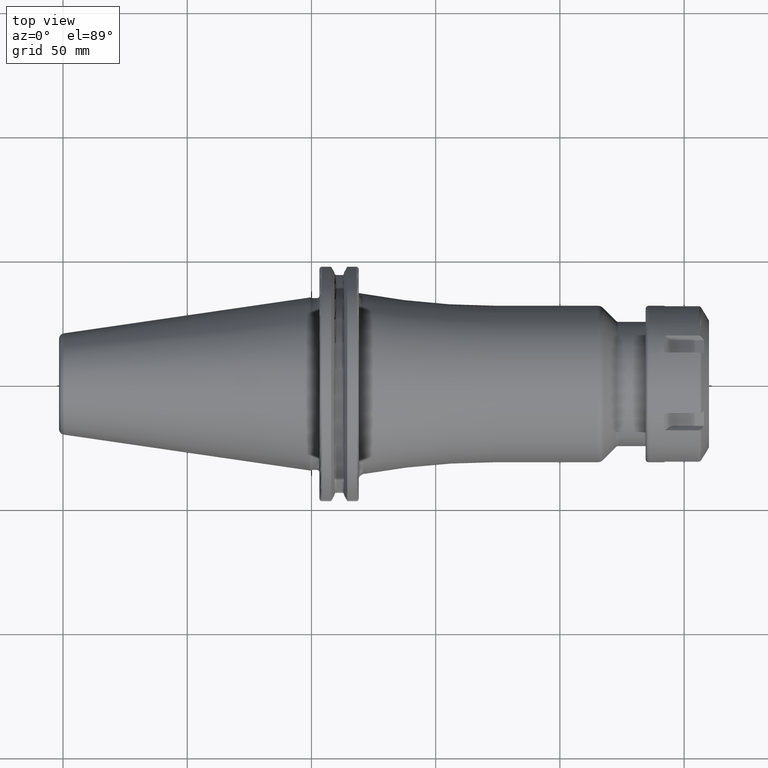
[diagram: clean part render]
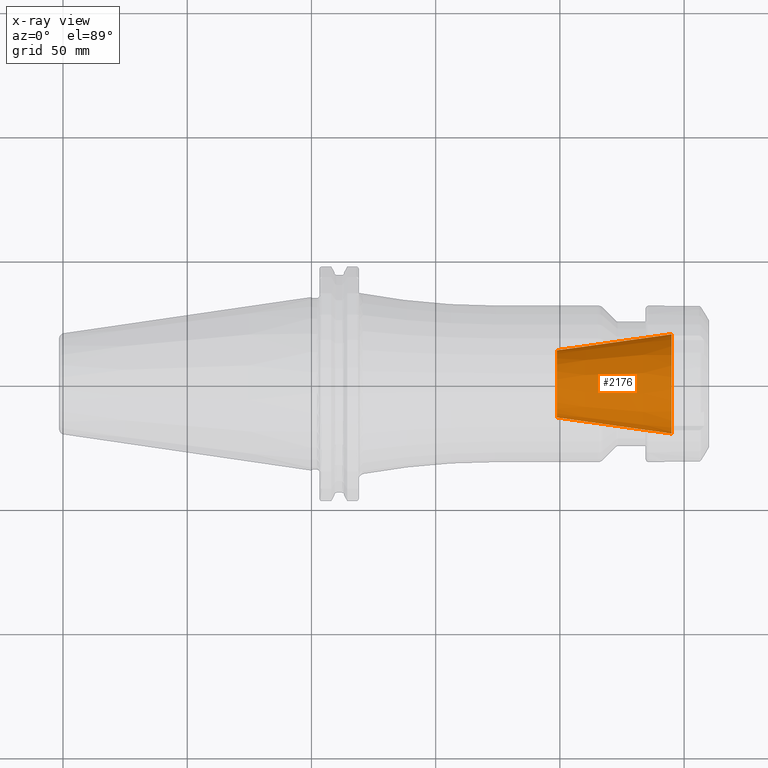
[diagram: x-ray — body ghosted, one internal face saturated and labeled with its STEP entity id]
A machine part, top view, then the same camera in x-ray: the body is ghosted and one INTERNAL B-rep face — a face not visible from any outside direction — is saturated and labeled: STEP entity #2176.
In plain terms, the highlighted conical surface has half-angle 8 deg.
Its self-contained STEP definition (entity closure, byte-faithful):
#390=CARTESIAN_POINT('',(1.45E2,0.E0,0.E0));
#391=DIRECTION('',(1.E0,0.E0,0.E0));
#392=DIRECTION('',(0.E0,1.E0,0.E0));
#393=AXIS2_PLACEMENT_3D('',#390,#391,#392);
#400=DIRECTION('',(-9.902680687416E-1,-1.391731009601E-1,0.E0));
#401=VECTOR('',#400,4.670442747313E1);
#402=CARTESIAN_POINT('',(1.45E2,2.E1,0.E0));
#403=LINE('',#402,#401);
#404=DIRECTION('',(-9.902680687416E-1,1.391731009601E-1,0.E0));
#405=VECTOR('',#404,4.670442747313E1);
#406=CARTESIAN_POINT('',(1.45E2,-2.E1,0.E0));
#407=LINE('',#406,#405);
#421=CARTESIAN_POINT('',(9.875009680450E1,0.E0,0.E0));
#422=DIRECTION('',(1.E0,0.E0,0.E0));
#423=DIRECTION('',(0.E0,1.E0,0.E0));
#424=AXIS2_PLACEMENT_3D('',#421,#422,#423);
#1625=CARTESIAN_POINT('',(9.875009680450E1,1.35E1,0.E0));
#1627=VERTEX_POINT('',#1625);
#1629=CARTESIAN_POINT('',(9.875009680450E1,-1.35E1,0.E0));
#1631=VERTEX_POINT('',#1629);
#1633=CARTESIAN_POINT('',(1.45E2,2.E1,0.E0));
#1634=VERTEX_POINT('',#1633);
#1635=CARTESIAN_POINT('',(1.45E2,-2.E1,0.E0));
#1636=VERTEX_POINT('',#1635);
#2162=CARTESIAN_POINT('',(1.218750484023E2,0.E0,0.E0));
#2163=DIRECTION('',(1.E0,0.E0,0.E0));
#2164=DIRECTION('',(0.E0,-1.E0,0.E0));
#2165=AXIS2_PLACEMENT_3D('',#2162,#2163,#2164);
#2166=CONICAL_SURFACE('',#2165,1.675E1,8.E0);
#2168=ORIENTED_EDGE('',*,*,#2167,.T.);
#2170=ORIENTED_EDGE('',*,*,#2169,.T.);
#2172=ORIENTED_EDGE('',*,*,#2171,.F.);
#2173=ORIENTED_EDGE('',*,*,#2155,.F.);
#2174=EDGE_LOOP('',(#2168,#2170,#2172,#2173));
#2175=FACE_OUTER_BOUND('',#2174,.F.);
#2176=ADVANCED_FACE('',(#2175),#2166,.F.);
#394=CIRCLE('',#393,2.E1);
#425=CIRCLE('',#424,1.35E1);
#2155=EDGE_CURVE('',#1634,#1636,#394,.T.);
#2167=EDGE_CURVE('',#1634,#1627,#403,.T.);
#2169=EDGE_CURVE('',#1627,#1631,#425,.T.);
#2171=EDGE_CURVE('',#1636,#1631,#407,.T.);